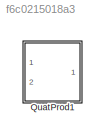
MODEL slx_f6c0215018a3
KIND library
CONFIG AbsTol = auto
CONFIG FixedStep = auto
CONFIG MaxStep = auto
CONFIG MinStep = auto
CONFIG RelTol = 1e-3
CONFIG SampleTimeConstraint = Unconstrained
CONFIG Solver = VariableStepAuto
CONFIG SolverMode = Auto
CONFIG SolverName = VariableStepAuto
CONFIG StartTime = 0.0
CONFIG StopTime = 10.0
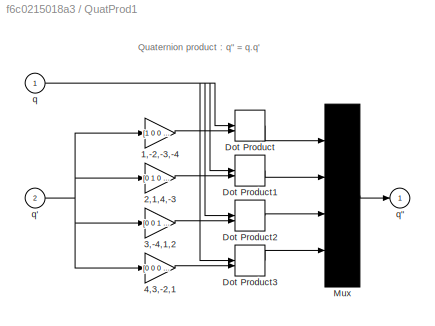
BLOCK [SubSystem] QuatProd1
  Ports = [2, 1]
  RTWFcnNameOpts = Use subsystem name
  RTWFileNameOpts = Use subsystem name
  RTWSystemCode = Reusable function
  RequestExecContextInheritance = off
  TreatAsAtomicUnit = on
BLOCK [Gain] QuatProd1/1,-2,-3,-4
  Gain = [1 0 0 0;0 -1 0 0;0 0 -1 0;0 0 0 -1]
  Multiplication = Matrix(K*u) (u vector)
BLOCK [Gain] QuatProd1/2,1,4,-3
  Gain = [0 1 0 0 ; 1 0 0 0 ; 0 0 0 1 ; 0 0 -1 0]
  Multiplication = Matrix(K*u) (u vector)
BLOCK [Gain] QuatProd1/3,-4,1,2
  Gain = [0 0 1 0 ; 0 0 0 -1 ; 1 0 0 0 ; 0 1 0 0]
  Multiplication = Matrix(K*u) (u vector)
BLOCK [Gain] QuatProd1/4,3,-2,1
  Gain = [0 0 0 1;0 0 1 0 ; 0 -1 0 0 ; 1 0 0 0]
  Multiplication = Matrix(K*u) (u vector)
BLOCK [DotProduct] QuatProd1/Dot Product
  OutDataTypeStr = Inherit: Inherit via internal rule
BLOCK [DotProduct] QuatProd1/Dot Product1
  OutDataTypeStr = Inherit: Inherit via internal rule
BLOCK [DotProduct] QuatProd1/Dot Product2
  OutDataTypeStr = Inherit: Inherit via internal rule
BLOCK [DotProduct] QuatProd1/Dot Product3
  OutDataTypeStr = Inherit: Inherit via internal rule
BLOCK [Mux] QuatProd1/Mux
  Ports = [4, 1]
BLOCK [Inport] QuatProd1/q
  IconDisplay = Port number
  OutDataTypeStr = double
  PortDimensions = 4
BLOCK [Outport] QuatProd1/q"
  IconDisplay = Port number
  InitialOutput = 0
  OutDataTypeStr = double
  PortDimensions = 4
BLOCK [Inport] QuatProd1/q'
  IconDisplay = Port number
  OutDataTypeStr = double
  Port = 2
  PortDimensions = 4
ANNOTATION QuatProd1: Quaternion product : q" = q.q'
LINE QuatProd1/1,-2,-3,-4:1 -> QuatProd1/Dot Product:2
LINE QuatProd1/2,1,4,-3:1 -> QuatProd1/Dot Product1:2
LINE QuatProd1/3,-4,1,2:1 -> QuatProd1/Dot Product2:2
LINE QuatProd1/4,3,-2,1:1 -> QuatProd1/Dot Product3:2
LINE QuatProd1/Dot Product1:1 -> QuatProd1/Mux:2
LINE QuatProd1/Dot Product2:1 -> QuatProd1/Mux:3
LINE QuatProd1/Dot Product3:1 -> QuatProd1/Mux:4
LINE QuatProd1/Dot Product:1 -> QuatProd1/Mux:1
LINE QuatProd1/Mux:1 -> QuatProd1/q":1
NET QuatProd1/q':1 -> QuatProd1/1,-2,-3,-4:1, QuatProd1/2,1,4,-3:1, QuatProd1/3,-4,1,2:1, QuatProd1/4,3,-2,1:1
NET QuatProd1/q:1 -> QuatProd1/Dot Product1:1, QuatProd1/Dot Product2:1, QuatProd1/Dot Product3:1, QuatProd1/Dot Product:1
note: NET lines group one-source signal fan-out (src -> all destinations, sorted); 1:1 wires keep LINE
